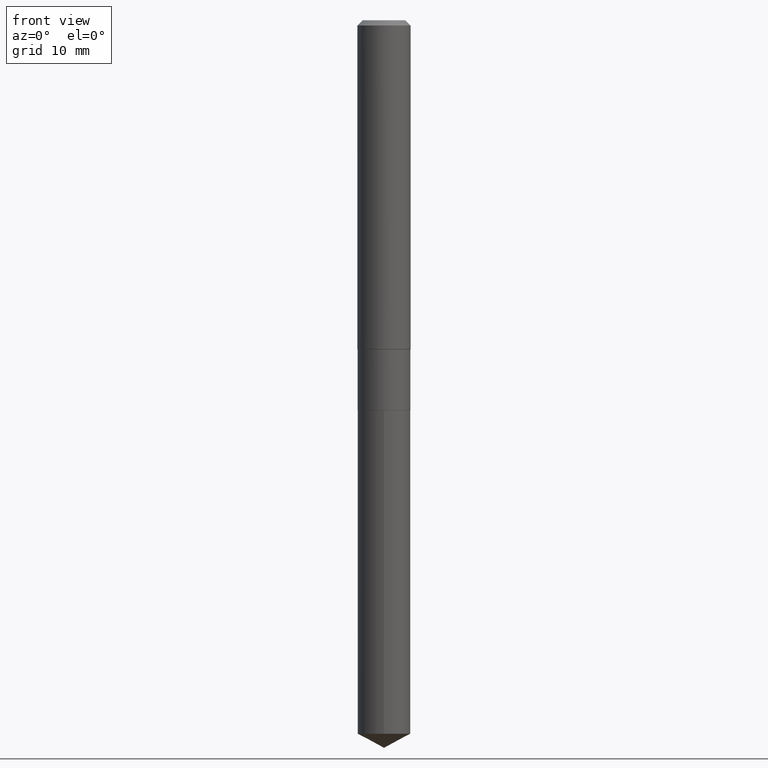
[diagram: clean part render]
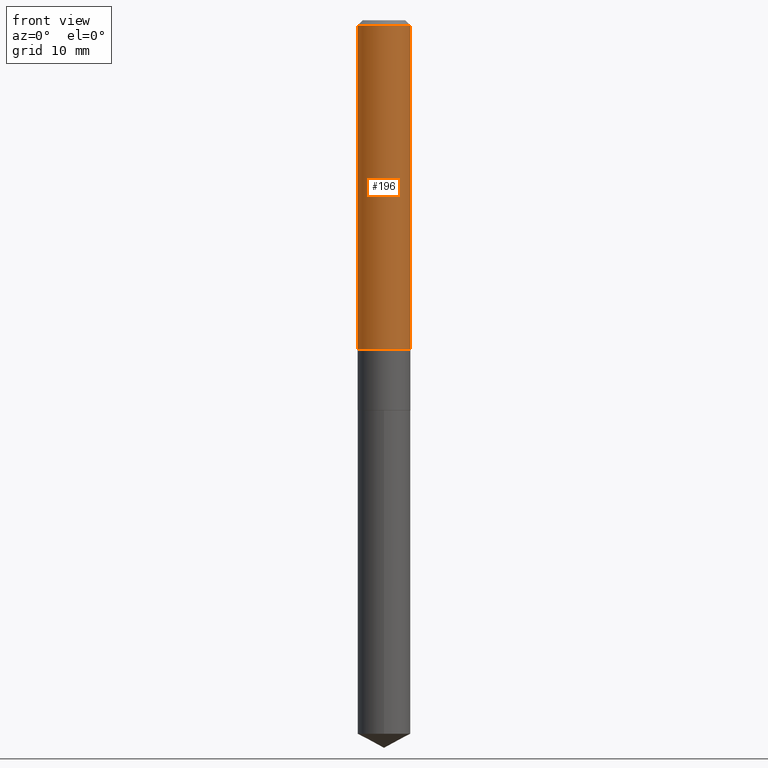
[diagram: same view with one face highlighted and labeled with its STEP entity id]
A machine part, front view. The second image highlights one B-rep face of the part: STEP entity #196.
In plain terms, the highlighted cylindrical surface (edge-blend (fillet) strip) has radius 2.9997 mm, axis along (-0, 0, 1).
Its self-contained STEP definition (entity closure, byte-faithful):
#3 = CIRCLE ( 'NONE', #425, 0.1180999999999999966 ) ;
#10 = LINE ( 'NONE', #421, #111 ) ;
#28 = DIRECTION ( 'NONE',  ( 1.000000000000000000, -6.982962677686266711E-15, 0.000000000000000000 ) ) ;
#42 = EDGE_CURVE ( 'NONE', #361, #52, #3, .T. ) ;
#52 = VERTEX_POINT ( 'NONE', #166 ) ;
#81 = DIRECTION ( 'NONE',  ( -2.445468806185136877E-29, 3.491481338843145188E-15, 1.000000000000000000 ) ) ;
#109 = VERTEX_POINT ( 'NONE', #401 ) ;
#110 = CARTESIAN_POINT ( 'NONE',  ( 0.1181000000000001632, -5.921901498811854753E-15, -1.459899999999999531 ) ) ;
#111 = VECTOR ( 'NONE', #81, 39.37007874015748143 ) ;
#141 = CARTESIAN_POINT ( 'NONE',  ( -0.1181000000000000799, 8.391509709326788873E-16, -5.809262341591047988E-30 ) ) ;
#148 = EDGE_CURVE ( 'NONE', #109, #361, #263, .T. ) ;
#152 = CARTESIAN_POINT ( 'NONE',  ( -0.1180999999999999966, -1.750690226967611791E-15, -0.02362000000000014088 ) ) ;
#154 = DIRECTION ( 'NONE',  ( 1.000000000000000000, -6.982962677686270655E-15, 0.000000000000000000 ) ) ;
#166 = CARTESIAN_POINT ( 'NONE',  ( 0.1180999999999999966, -9.071566814582237199E-16, -0.02362000000000014088 ) ) ;
#171 = CARTESIAN_POINT ( 'NONE',  ( 5.776197320209327532E-31, -8.246878922347559293E-17, -0.02362000000000014088 ) ) ;
#174 = CARTESIAN_POINT ( 'NONE',  ( 0.000000000000000000, 0.000000000000000000, 0.000000000000000000 ) ) ;
#176 = EDGE_LOOP ( 'NONE', ( #327, #257, #472, #230 ) ) ;
#196 = ADVANCED_FACE ( 'NONE', ( #339 ), #446, .T. ) ;
#227 = DIRECTION ( 'NONE',  ( -2.445468806185136597E-29, 3.491481338843145583E-15, 1.000000000000000000 ) ) ;
#229 = AXIS2_PLACEMENT_3D ( 'NONE', #462, #227, #154 ) ;
#230 = ORIENTED_EDGE ( 'NONE', *, *, #42, .F. ) ;
#257 = ORIENTED_EDGE ( 'NONE', *, *, #473, .T. ) ;
#263 = LINE ( 'NONE', #141, #365 ) ;
#278 = CIRCLE ( 'NONE', #229, 0.1181000000000001632 ) ;
#293 = DIRECTION ( 'NONE',  ( -2.445468806185136597E-29, 3.491481338843145583E-15, 1.000000000000000000 ) ) ;
#305 = AXIS2_PLACEMENT_3D ( 'NONE', #174, #420, #490 ) ;
#327 = ORIENTED_EDGE ( 'NONE', *, *, #148, .F. ) ;
#339 = FACE_OUTER_BOUND ( 'NONE', #176, .T. ) ;
#349 = EDGE_CURVE ( 'NONE', #417, #52, #10, .T. ) ;
#361 = VERTEX_POINT ( 'NONE', #152 ) ;
#365 = VECTOR ( 'NONE', #422, 39.37007874015748143 ) ;
#401 = CARTESIAN_POINT ( 'NONE',  ( -0.1181000000000001632, -4.258062635644426716E-15, -1.459899999999999531 ) ) ;
#417 = VERTEX_POINT ( 'NONE', #110 ) ;
#420 = DIRECTION ( 'NONE',  ( -2.445468806185136597E-29, 3.491481338843145583E-15, 1.000000000000000000 ) ) ;
#421 = CARTESIAN_POINT ( 'NONE',  ( 0.1181000000000000799, -8.246878922347486570E-16, 5.758764772215004644E-30 ) ) ;
#422 = DIRECTION ( 'NONE',  ( -2.445468806185136877E-29, 3.491481338843145188E-15, 1.000000000000000000 ) ) ;
#425 = AXIS2_PLACEMENT_3D ( 'NONE', #171, #293, #28 ) ;
#446 = CYLINDRICAL_SURFACE ( 'NONE', #305, 0.1181000000000000799 ) ;
#462 = CARTESIAN_POINT ( 'NONE',  ( 3.570139910149679929E-29, -5.097213606577107280E-15, -1.459899999999999531 ) ) ;
#472 = ORIENTED_EDGE ( 'NONE', *, *, #349, .T. ) ;
#473 = EDGE_CURVE ( 'NONE', #109, #417, #278, .T. ) ;
#490 = DIRECTION ( 'NONE',  ( 1.000000000000000000, -6.982962677686266711E-15, 4.876176775795936353E-29 ) ) ;